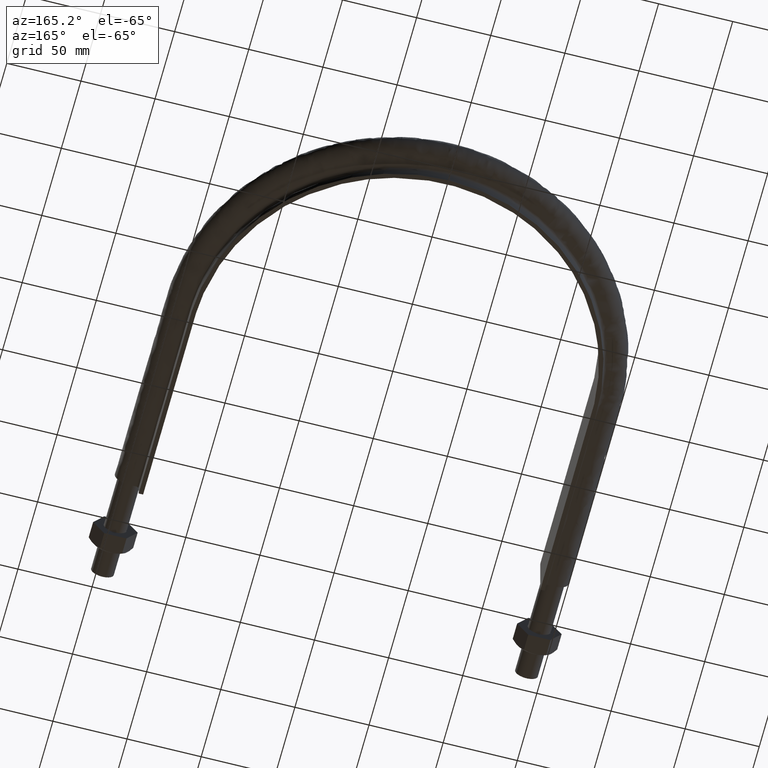
[diagram: clean part render]
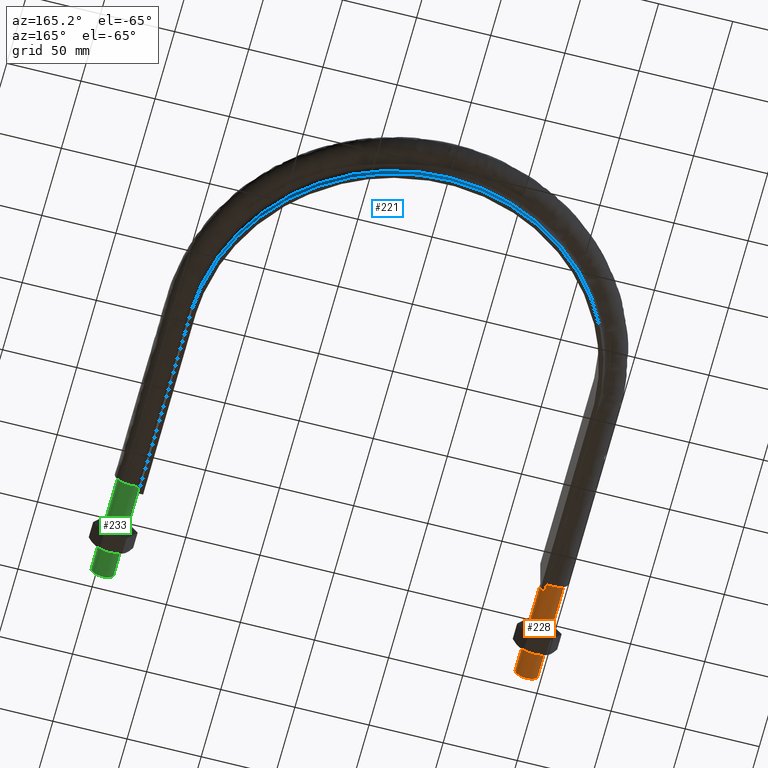
[diagram: same view with three faces highlighted in distinct colors, each labeled with its STEP entity id]
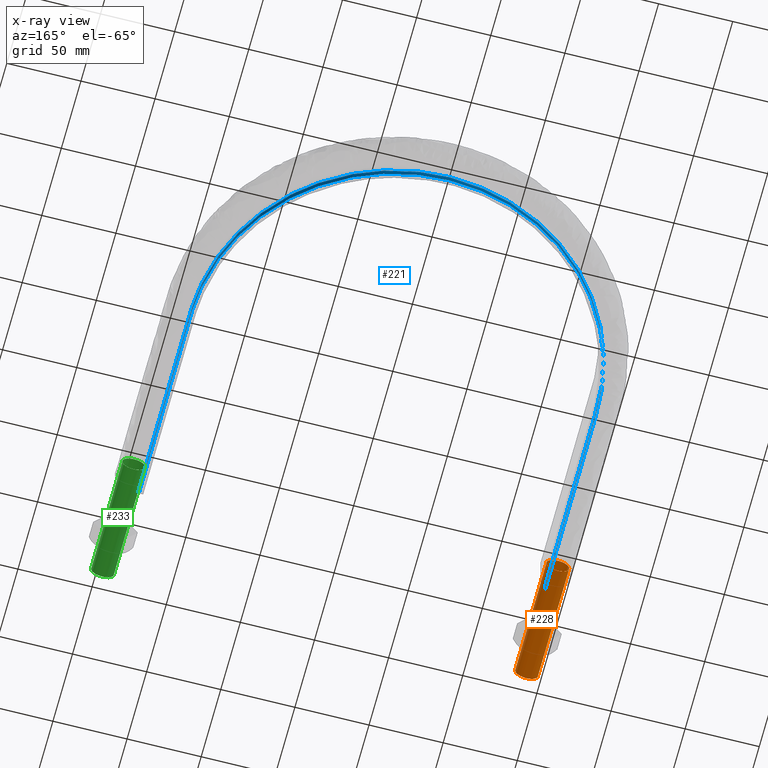
[diagram: x-ray of the same camera — body ghosted, the three highlighted faces saturated]
A machine part, auxiliary view with three faces highlighted in distinct colors.
The next image is the same camera in x-ray (body ghosted, the three faces saturated) — at least one of them is partly hidden behind the body in this view.
Their STEP definitions:

[orange] entity #228 — the highlighted cylindrical surface (bore or boss wall) has radius 7.75 mm, axis along (0, 1, -0).
#228 = ADVANCED_FACE( '', ( #281, #282 ), #283, .T. );
#281 = FACE_OUTER_BOUND( '', #1113, .T. );
#282 = FACE_OUTER_BOUND( '', #1114, .T. );
#283 = CYLINDRICAL_SURFACE( '', #1115, 7.75000000000001 );
#1113 = EDGE_LOOP( '', ( #1636 ) );
#1114 = EDGE_LOOP( '', ( #1637 ) );
#1115 = AXIS2_PLACEMENT_3D( '', #1638, #1639, #1640 );
#1636 = ORIENTED_EDGE( '', *, *, #1850, .T. );
#1637 = ORIENTED_EDGE( '', *, *, #1851, .F. );
#1638 = CARTESIAN_POINT( '', ( -143.000000000000, 80.0000000000001, -2.44921270764475E-014 ) );
#1639 = DIRECTION( '', ( 2.44921270764476E-016, 1.00000000000000, -3.06151588455594E-016 ) );
#1640 = DIRECTION( '', ( 1.00000000000000, -2.44921270764476E-016, -5.47382212626882E-048 ) );
#1850 = EDGE_CURVE( '', #1936, #1936, #1937, .T. );
#1851 = EDGE_CURVE( '', #1938, #1938, #1939, .T. );
#1936 = VERTEX_POINT( '', #2506 );
#1937 = CIRCLE( '', #2507, 7.75000000000001 );
#1938 = VERTEX_POINT( '', #2508 );
#1939 = CIRCLE( '', #2509, 7.75000000000001 );
#2506 = CARTESIAN_POINT( '', ( -135.250000000000, 80.0000000000001, -2.44921270764475E-014 ) );
#2507 = AXIS2_PLACEMENT_3D( '', #2784, #2785, #2786 );
#2508 = CARTESIAN_POINT( '', ( -135.250000000000, 7.11248822424931E-014, 0.000000000000000 ) );
#2509 = AXIS2_PLACEMENT_3D( '', #2787, #2788, #2789 );
#2784 = CARTESIAN_POINT( '', ( -143.000000000000, 80.0000000000001, -2.44921270764475E-014 ) );
#2785 = DIRECTION( '', ( -2.44921270764476E-016, -1.00000000000000, 3.06151588455594E-016 ) );
#2786 = DIRECTION( '', ( 1.00000000000000, -2.44921270764476E-016, -5.47382212626882E-048 ) );
#2787 = CARTESIAN_POINT( '', ( -143.000000000000, 7.30230220909178E-014, 4.24221214785834E-047 ) );
#2788 = DIRECTION( '', ( -2.44921270764476E-016, -1.00000000000000, 3.06151588455594E-016 ) );
#2789 = DIRECTION( '', ( 1.00000000000000, -2.44921270764476E-016, -5.47382212626882E-048 ) );

[blue] entity #221 — the highlighted face is a SurfaceOfExtrusion surface.
#221 = ADVANCED_FACE( '', ( #264 ), #265, .T. );
#264 = FACE_OUTER_BOUND( '', #365, .T. );
#265 = SURFACE_OF_LINEAR_EXTRUSION( '', #366, #367 );
#365 = EDGE_LOOP( '', ( #1483, #1484, #1485, #1486 ) );
#366 = B_SPLINE_CURVE_WITH_KNOTS( '', 3, ( #1487, #1488, #1489, #1490, #1491, #1492, #1493, #1494, #1495, #1496, #1497, #1498, #1499, #1500, #1501, #1502, #1503, #1504, #1505, #1506, #1507, #1508, #1509, #1510, #1511, #1512, #1513, #1514, #1515, #1516, #1517, #1518, #1519, #1520, #1521, #1522, #1523, #1524, #1525, #1526, #1527, #1528, #1529, #1530, #1531, #1532, #1533, #1534, #1535, #1536, #1537, #1538, #1539, #1540, #1541, #1542, #1543, #1544, #1545, #1546, #1547, #1548, #1549, #1550, #1551, #1552, #1553, #1554, #1555, #1556, #1557, #1558, #1559, #1560, #1561, #1562, #1563, #1564, #1565, #1566, #1567, #1568, #1569, #1570, #1571, #1572, #1573, #1574, #1575, #1576, #1577, #1578, #1579 ), .UNSPECIFIED., .F., .F., ( 4, 1, 1, 2, 2, 2, 2, 2, 2, 2, 2, 2, 2, 2, 2, 2, 2, 2, 2, 2, 2, 2, 2, 2, 2, 2, 2, 2, 2, 2, 2, 2, 2, 2, 2, 2, 2, 2, 2, 2, 2, 2, 2, 2, 2, 2, 1, 4 ), ( 0.000000000000000, 0.125000000000002, 0.187500000000003, 0.191406250000003, 0.195312500000003, 0.203125000000002, 0.218750000000003, 0.250000000000003, 0.257812500000003, 0.265625000000003, 0.281250000000002, 0.312500000000002, 0.328125000000002, 0.343750000000002, 0.375000000000001, 0.390625000000001, 0.398437500000001, 0.406250000000001, 0.437500000000001, 0.453125000000001, 0.460937500000000, 0.468750000000000, 0.500000000000000, 0.515625000000000, 0.523437500000000, 0.531250000000000, 0.562500000000000, 0.578124999999999, 0.585937499999999, 0.593749999999999, 0.624999999999999, 0.656249999999999, 0.664062499999999, 0.671874999999999, 0.687499999999998, 0.718749999999998, 0.722656249999998, 0.726562499999998, 0.734374999999998, 0.749999999999998, 0.781249999999997, 0.789062499999997, 0.796874999999997, 0.804687499999997, 0.808593749999997, 0.812499999999996, 0.874999999999998, 1.00000000000000 ), .UNSPECIFIED. );
#367 = VECTOR( '', #1580, 1000.00000000000 );
#1483 = ORIENTED_EDGE( '', *, *, #1837, .T. );
#1484 = ORIENTED_EDGE( '', *, *, #1838, .T. );
#1485 = ORIENTED_EDGE( '', *, *, #1839, .F. );
#1486 = ORIENTED_EDGE( '', *, *, #1840, .F. );
#1487 = CARTESIAN_POINT( '', ( -136.950000000000, 69.5000000000001, -15.0000000000000 ) );
#1488 = CARTESIAN_POINT( '', ( -136.950000000000, 98.1083518142186, -15.0000000000000 ) );
#1489 = CARTESIAN_POINT( '', ( -136.950000000000, 141.020879535546, -15.0000000000000 ) );
#1490 = CARTESIAN_POINT( '', ( -136.950000000000, 184.827418251068, -15.0000000000000 ) );
#1491 = CARTESIAN_POINT( '', ( -136.950000000000, 200.025605152372, -15.0000000000000 ) );
#1492 = CARTESIAN_POINT( '', ( -136.950000000000, 201.813627140760, -15.0000000000000 ) );
#1493 = CARTESIAN_POINT( '', ( -136.951346114390, 202.707775042567, -15.0000000000000 ) );
#1494 = CARTESIAN_POINT( '', ( -136.920609614582, 205.386681945512, -15.0000000000000 ) );
#1495 = CARTESIAN_POINT( '', ( -136.864816667886, 207.169029468828, -15.0000000000000 ) );
#1496 = CARTESIAN_POINT( '', ( -136.593146380454, 212.505464995944, -15.0000000000000 ) );
#1497 = CARTESIAN_POINT( '', ( -136.273189661635, 216.048967525582, -15.0000000000000 ) );
#1498 = CARTESIAN_POINT( '', ( -134.901802697672, 226.637621477265, -15.0000000000000 ) );
#1499 = CARTESIAN_POINT( '', ( -133.442512350631, 233.641291170172, -15.0000000000000 ) );
#1500 = CARTESIAN_POINT( '', ( -130.901383601594, 242.322953634697, -15.0000000000000 ) );
#1501 = CARTESIAN_POINT( '', ( -130.357015832177, 244.055610275365, -15.0000000000000 ) );
#1502 = CARTESIAN_POINT( '', ( -129.193847954833, 247.513353357775, -15.0000000000000 ) );
#1503 = CARTESIAN_POINT( '', ( -128.573476846170, 249.242131151953, -15.0000000000000 ) );
#1504 = CARTESIAN_POINT( '', ( -126.618174555290, 254.362723165805, -15.0000000000000 ) );
#1505 = CARTESIAN_POINT( '', ( -125.184490197968, 257.702984774707, -15.0000000000000 ) );
#1506 = CARTESIAN_POINT( '', ( -120.505328593638, 267.510336023068, -15.0000000000000 ) );
#1507 = CARTESIAN_POINT( '', ( -116.886061102882, 273.766429658881, -15.0000000000000 ) );
#1508 = CARTESIAN_POINT( '', ( -110.711856714430, 282.729863608688, -15.0000000000000 ) );
#1509 = CARTESIAN_POINT( '', ( -108.528201325971, 285.647880339849, -15.0000000000000 ) );
#1510 = CARTESIAN_POINT( '', ( -103.904407759561, 291.334716161009, -15.0000000000000 ) );
#1511 = CARTESIAN_POINT( '', ( -101.494535344133, 294.066402872892, -15.0000000000000 ) );
#1512 = CARTESIAN_POINT( '', ( -93.9768857717446, 301.932991567950, -15.0000000000000 ) );
#1513 = CARTESIAN_POINT( '', ( -88.5810092968209, 306.739345713163, -15.0000000000000 ) );
#1514 = CARTESIAN_POINT( '', ( -79.9242816112247, 313.306932196036, -15.0000000000000 ) );
#1515 = CARTESIAN_POINT( '', ( -76.9444034133837, 315.388585548725, -15.0000000000000 ) );
#1516 = CARTESIAN_POINT( '', ( -72.3295994596727, 318.345723108325, -15.0000000000000 ) );
#1517 = CARTESIAN_POINT( '', ( -70.7649027135216, 319.304967513353, -15.0000000000000 ) );
#1518 = CARTESIAN_POINT( '', ( -67.6140063459477, 321.151291429898, -15.0000000000000 ) );
#1519 = CARTESIAN_POINT( '', ( -66.0248395654166, 322.040393152112, -15.0000000000000 ) );
#1520 = CARTESIAN_POINT( '', ( -58.0112237793678, 326.317614365294, -15.0000000000000 ) );
#1521 = CARTESIAN_POINT( '', ( -51.3838695117621, 329.201965048637, -15.0000000000000 ) );
#1522 = CARTESIAN_POINT( '', ( -41.1199306990064, 332.726783518546, -15.0000000000000 ) );
#1523 = CARTESIAN_POINT( '', ( -37.6449536795551, 333.768486983704, -15.0000000000000 ) );
#1524 = CARTESIAN_POINT( '', ( -32.3508572250080, 335.128370680882, -15.0000000000000 ) );
#1525 = CARTESIAN_POINT( '', ( -30.5711219683573, 335.548134877370, -15.0000000000000 ) );
#1526 = CARTESIAN_POINT( '', ( -26.9898806015859, 336.317593884026, -15.0000000000000 ) );
#1527 = CARTESIAN_POINT( '', ( -25.1975634552110, 336.665375332185, -15.0000000000000 ) );
#1528 = CARTESIAN_POINT( '', ( -16.2276412077899, 338.222717729931, -15.0000000000000 ) );
#1529 = CARTESIAN_POINT( '', ( -9.02523440856736, 338.892110978601, -15.0000000000000 ) );
#1530 = CARTESIAN_POINT( '', ( 1.81786937464440, 339.036051739121, -15.0000000000000 ) );
#1531 = CARTESIAN_POINT( '', ( 5.43888442947024, 338.939261125259, -15.0000000000000 ) );
#1532 = CARTESIAN_POINT( '', ( 10.8804397715058, 338.575567070277, -15.0000000000000 ) );
#1533 = CARTESIAN_POINT( '', ( 12.6959650568691, 338.417887683017, -15.0000000000000 ) );
#1534 = CARTESIAN_POINT( '', ( 16.3304010621810, 338.028795956680, -15.0000000000000 ) );
#1535 = CARTESIAN_POINT( '', ( 18.1509778757328, 337.796964222104, -15.0000000000000 ) );
#1536 = CARTESIAN_POINT( '', ( 27.1816143256275, 336.463826032725, -15.0000000000000 ) );
#1537 = CARTESIAN_POINT( '', ( 34.2390508622090, 334.839668956545, -15.0000000000000 ) );
#1538 = CARTESIAN_POINT( '', ( 44.5810778790186, 331.588595998648, -15.0000000000000 ) );
#1539 = CARTESIAN_POINT( '', ( 47.9874716560260, 330.368228980460, -15.0000000000000 ) );
#1540 = CARTESIAN_POINT( '', ( 53.0340989443394, 328.327522487613, -15.0000000000000 ) );
#1541 = CARTESIAN_POINT( '', ( 54.7057757971050, 327.612133002601, -15.0000000000000 ) );
#1542 = CARTESIAN_POINT( '', ( 58.0278931759406, 326.110472498891, -15.0000000000000 ) );
#1543 = CARTESIAN_POINT( '', ( 59.6804492387648, 325.323156348271, -15.0000000000000 ) );
#1544 = CARTESIAN_POINT( '', ( 67.8662269615211, 321.218943105620, -15.0000000000000 ) );
#1545 = CARTESIAN_POINT( '', ( 74.0672509269300, 317.457093171529, -15.0000000000000 ) );
#1546 = CARTESIAN_POINT( '', ( 85.8066697855656, 309.021264559786, -15.0000000000000 ) );
#1547 = CARTESIAN_POINT( '', ( 91.3450708111379, 304.347294323490, -15.0000000000000 ) );
#1548 = CARTESIAN_POINT( '', ( 97.8308624293475, 297.902999344751, -15.0000000000000 ) );
#1549 = CARTESIAN_POINT( '', ( 99.1063522438762, 296.583042958306, -15.0000000000000 ) );
#1550 = CARTESIAN_POINT( '', ( 101.590244963731, 293.906741637720, -15.0000000000000 ) );
#1551 = CARTESIAN_POINT( '', ( 102.801672903783, 292.547491271698, -15.0000000000000 ) );
#1552 = CARTESIAN_POINT( '', ( 106.346254323220, 288.407722078790, -15.0000000000000 ) );
#1553 = CARTESIAN_POINT( '', ( 108.589893323643, 285.565315081670, -15.0000000000000 ) );
#1554 = CARTESIAN_POINT( '', ( 114.970214089517, 276.795700236809, -15.0000000000000 ) );
#1555 = CARTESIAN_POINT( '', ( 118.759288976830, 270.628165305693, -15.0000000000000 ) );
#1556 = CARTESIAN_POINT( '', ( 122.482049801510, 263.316381079695, -15.0000000000000 ) );
#1557 = CARTESIAN_POINT( '', ( 122.888127373353, 262.498732064797, -15.0000000000000 ) );
#1558 = CARTESIAN_POINT( '', ( 123.684984798984, 260.852857558546, -15.0000000000000 ) );
#1559 = CARTESIAN_POINT( '', ( 124.076188679038, 260.023697389435, -15.0000000000000 ) );
#1560 = CARTESIAN_POINT( '', ( 125.223076035006, 257.527782870249, -15.0000000000000 ) );
#1561 = CARTESIAN_POINT( '', ( 125.951536386374, 255.853956327217, -15.0000000000000 ) );
#1562 = CARTESIAN_POINT( '', ( 128.029666807743, 250.803138776699, -15.0000000000000 ) );
#1563 = CARTESIAN_POINT( '', ( 129.272445179675, 247.396908032732, -15.0000000000000 ) );
#1564 = CARTESIAN_POINT( '', ( 132.586786070952, 237.064969568913, -15.0000000000000 ) );
#1565 = CARTESIAN_POINT( '', ( 134.247821790206, 230.026964115281, -15.0000000000000 ) );
#1566 = CARTESIAN_POINT( '', ( 135.630952375180, 221.039845429982, -15.0000000000000 ) );
#1567 = CARTESIAN_POINT( '', ( 135.872641992840, 219.232864972872, -15.0000000000000 ) );
#1568 = CARTESIAN_POINT( '', ( 136.284803757172, 215.599422844282, -15.0000000000000 ) );
#1569 = CARTESIAN_POINT( '', ( 136.455153129533, 213.772516640443, -15.0000000000000 ) );
#1570 = CARTESIAN_POINT( '', ( 136.721567786733, 210.123756924611, -15.0000000000000 ) );
#1571 = CARTESIAN_POINT( '', ( 136.818027802696, 208.298840221395, -15.0000000000000 ) );
#1572 = CARTESIAN_POINT( '', ( 136.907499245267, 205.560658472589, -15.0000000000000 ) );
#1573 = CARTESIAN_POINT( '', ( 136.928116262671, 204.647796719939, -15.0000000000000 ) );
#1574 = CARTESIAN_POINT( '', ( 136.950875956315, 202.821803321072, -15.0000000000000 ) );
#1575 = CARTESIAN_POINT( '', ( 136.950000000000, 201.908627575340, -15.0000000000000 ) );
#1576 = CARTESIAN_POINT( '', ( 136.950000000000, 186.384857445817, -15.0000000000000 ) );
#1577 = CARTESIAN_POINT( '', ( 136.950000000000, 142.553035903636, -15.0000000000000 ) );
#1578 = CARTESIAN_POINT( '', ( 136.950000000000, 98.7212143614546, -15.0000000000000 ) );
#1579 = CARTESIAN_POINT( '', ( 136.950000000000, 69.5000000000000, -15.0000000000000 ) );
#1580 = DIRECTION( '', ( -7.49830360911069E-032, -3.06151588455594E-016, -1.00000000000000 ) );
#1837 = EDGE_CURVE( '', #1915, #1916, #1917, .T. );
#1838 = EDGE_CURVE( '', #1916, #1918, #1919, .T. );
#1839 = EDGE_CURVE( '', #1920, #1918, #1921, .T. );
#1840 = EDGE_CURVE( '', #1915, #1920, #1922, .T. );
#1915 = VERTEX_POINT( '', #2183 );
#1916 = VERTEX_POINT( '', #2184 );
#1917 = B_SPLINE_CURVE_WITH_KNOTS( '', 3, ( #2185, #2186, #2187, #2188, #2189, #2190, #2191, #2192, #2193, #2194, #2195, #2196, #2197, #2198, #2199, #2200, #2201, #2202, #2203, #2204, #2205, #2206, #2207, #2208, #2209, #2210, #2211, #2212, #2213, #2214, #2215, #2216, #2217, #2218, #2219, #2220, #2221, #2222, #2223, #2224, #2225, #2226, #2227, #2228, #2229, #2230, #2231, #2232, #2233, #2234, #2235, #2236, #2237, #2238, #2239, #2240, #2241, #2242, #2243, #2244, #2245, #2246, #2247, #2248, #2249, #2250, #2251, #2252, #2253, #2254, #2255, #2256, #2257, #2258, #2259, #2260, #2261, #2262, #2263, #2264, #2265, #2266, #2267, #2268, #2269, #2270, #2271, #2272, #2273, #2274, #2275, #2276, #2277 ), .UNSPECIFIED., .F., .F., ( 4, 1, 1, 2, 2, 2, 2, 2, 2, 2, 2, 2, 2, 2, 2, 2, 2, 2, 2, 2, 2, 2, 2, 2, 2, 2, 2, 2, 2, 2, 2, 2, 2, 2, 2, 2, 2, 2, 2, 2, 2, 2, 2, 2, 2, 2, 1, 4 ), ( 0.000000000000000, 0.125000000000002, 0.187500000000003, 0.191406250000003, 0.195312500000003, 0.203125000000002, 0.218750000000003, 0.250000000000003, 0.257812500000003, 0.265625000000003, 0.281250000000002, 0.312500000000002, 0.328125000000002, 0.343750000000002, 0.375000000000001, 0.390625000000001, 0.398437500000001, 0.406250000000001, 0.437500000000001, 0.453125000000001, 0.460937500000000, 0.468750000000000, 0.500000000000000, 0.515625000000000, 0.523437500000000, 0.531250000000000, 0.562500000000000, 0.578124999999999, 0.585937499999999, 0.593749999999999, 0.624999999999999, 0.656249999999999, 0.664062499999999, 0.671874999999999, 0.687499999999998, 0.718749999999998, 0.722656249999998, 0.726562499999998, 0.734374999999998, 0.749999999999998, 0.781249999999997, 0.789062499999997, 0.796874999999997, 0.804687499999997, 0.808593749999997, 0.812499999999996, 0.874999999999998, 1.00000000000000 ), .UNSPECIFIED. );
#1918 = VERTEX_POINT( '', #2278 );
#1919 = LINE( '', #2279, #2280 );
#1920 = VERTEX_POINT( '', #2281 );
#1921 = B_SPLINE_CURVE_WITH_KNOTS( '', 3, ( #2282, #2283, #2284, #2285, #2286, #2287, #2288, #2289, #2290, #2291, #2292, #2293, #2294, #2295, #2296, #2297, #2298, #2299, #2300, #2301, #2302, #2303, #2304, #2305, #2306, #2307, #2308, #2309, #2310, #2311, #2312, #2313, #2314, #2315, #2316, #2317, #2318, #2319, #2320, #2321, #2322, #2323, #2324, #2325, #2326, #2327, #2328, #2329, #2330, #2331, #2332, #2333, #2334, #2335, #2336, #2337, #2338, #2339, #2340, #2341, #2342, #2343, #2344, #2345, #2346, #2347, #2348, #2349, #2350, #2351, #2352, #2353, #2354, #2355, #2356, #2357, #2358, #2359, #2360, #2361, #2362, #2363, #2364, #2365, #2366, #2367, #2368, #2369, #2370, #2371, #2372, #2373, #2374, #2375, #2376, #2377, #2378, #2379, #2380, #2381, #2382, #2383, #2384, #2385, #2386, #2387, #2388 ), .UNSPECIFIED., .F., .F., ( 4, 1, 2, 2, 2, 2, 2, 2, 2, 2, 2, 2, 2, 2, 2, 2, 2, 2, 2, 2, 2, 2, 2, 2, 2, 2, 2, 2, 2, 2, 2, 2, 2, 2, 2, 1, 2, 2, 2, 2, 2, 2, 2, 2, 2, 2, 2, 2, 2, 2, 2, 2, 2, 1, 4 ), ( 0.000000000000000, 0.0874256844655775, 0.131138526698366, 0.133870579337916, 0.136602631977465, 0.142066737256563, 0.152994947814760, 0.174851368931154, 0.180315474210253, 0.183047526849802, 0.185779579489352, 0.196707790047549, 0.218564211163944, 0.229492421722142, 0.232224474361691, 0.234956527001241, 0.240420632280340, 0.262277053396735, 0.273205263954933, 0.275937316594483, 0.278669369234032, 0.284133474513131, 0.305989895629526, 0.316918106187724, 0.322382211466823, 0.325114264106372, 0.327846316745922, 0.349702737862317, 0.360630948420514, 0.366095053699613, 0.368827106339162, 0.371559158978712, 0.393415580095107, 0.415272001211502, 0.418004053851051, 0.420736106490601, 0.426200211769699, 0.437128422327897, 0.458984843444291, 0.461716896083841, 0.464448948723390, 0.469913054002489, 0.480841264560686, 0.502697685677080, 0.508161790956179, 0.513625896235278, 0.524554106793475, 0.546410527909870, 0.551874633188968, 0.557338738468067, 0.562802843747166, 0.565534896386715, 0.568266949026264, 0.611979791259055, 0.699405475724636 ), .UNSPECIFIED. );
#1922 = LINE( '', #2389, #2390 );
#2183 = CARTESIAN_POINT( '', ( -136.950000000000, 69.5000000000001, -15.0000000000000 ) );
#2184 = CARTESIAN_POINT( '', ( 136.950000000000, 69.5000000000001, -15.0000000000000 ) );
#2185 = CARTESIAN_POINT( '', ( -136.950000000000, 69.5000000000001, -15.0000000000000 ) );
#2186 = CARTESIAN_POINT( '', ( -136.950000000000, 98.1083518142186, -15.0000000000000 ) );
#2187 = CARTESIAN_POINT( '', ( -136.950000000000, 141.020879535546, -15.0000000000000 ) );
#2188 = CARTESIAN_POINT( '', ( -136.950000000000, 184.827418251068, -15.0000000000000 ) );
#2189 = CARTESIAN_POINT( '', ( -136.950000000000, 200.025605152372, -15.0000000000000 ) );
#2190 = CARTESIAN_POINT( '', ( -136.950000000000, 201.813627140760, -15.0000000000000 ) );
#2191 = CARTESIAN_POINT( '', ( -136.951346114390, 202.707775042567, -15.0000000000000 ) );
#2192 = CARTESIAN_POINT( '', ( -136.920609614582, 205.386681945512, -15.0000000000000 ) );
#2193 = CARTESIAN_POINT( '', ( -136.864816667886, 207.169029468828, -15.0000000000000 ) );
#2194 = CARTESIAN_POINT( '', ( -136.593146380454, 212.505464995944, -15.0000000000000 ) );
#2195 = CARTESIAN_POINT( '', ( -136.273189661635, 216.048967525582, -15.0000000000000 ) );
#2196 = CARTESIAN_POINT( '', ( -134.901802697672, 226.637621477265, -15.0000000000000 ) );
#2197 = CARTESIAN_POINT( '', ( -133.442512350631, 233.641291170172, -15.0000000000000 ) );
#2198 = CARTESIAN_POINT( '', ( -130.901383601594, 242.322953634697, -15.0000000000000 ) );
#2199 = CARTESIAN_POINT( '', ( -130.357015832177, 244.055610275365, -15.0000000000000 ) );
#2200 = CARTESIAN_POINT( '', ( -129.193847954833, 247.513353357775, -15.0000000000000 ) );
#2201 = CARTESIAN_POINT( '', ( -128.573476846170, 249.242131151953, -15.0000000000000 ) );
#2202 = CARTESIAN_POINT( '', ( -126.618174555290, 254.362723165805, -15.0000000000000 ) );
#2203 = CARTESIAN_POINT( '', ( -125.184490197968, 257.702984774707, -15.0000000000000 ) );
#2204 = CARTESIAN_POINT( '', ( -120.505328593638, 267.510336023068, -15.0000000000000 ) );
#2205 = CARTESIAN_POINT( '', ( -116.886061102882, 273.766429658881, -15.0000000000000 ) );
#2206 = CARTESIAN_POINT( '', ( -110.711856714430, 282.729863608688, -15.0000000000000 ) );
#2207 = CARTESIAN_POINT( '', ( -108.528201325971, 285.647880339849, -15.0000000000000 ) );
#2208 = CARTESIAN_POINT( '', ( -103.904407759561, 291.334716161009, -15.0000000000000 ) );
#2209 = CARTESIAN_POINT( '', ( -101.494535344133, 294.066402872892, -15.0000000000000 ) );
#2210 = CARTESIAN_POINT( '', ( -93.9768857717446, 301.932991567950, -15.0000000000000 ) );
#2211 = CARTESIAN_POINT( '', ( -88.5810092968209, 306.739345713163, -15.0000000000000 ) );
#2212 = CARTESIAN_POINT( '', ( -79.9242816112247, 313.306932196036, -15.0000000000000 ) );
#2213 = CARTESIAN_POINT( '', ( -76.9444034133837, 315.388585548725, -15.0000000000000 ) );
#2214 = CARTESIAN_POINT( '', ( -72.3295994596727, 318.345723108325, -15.0000000000000 ) );
#2215 = CARTESIAN_POINT( '', ( -70.7649027135216, 319.304967513353, -15.0000000000000 ) );
#2216 = CARTESIAN_POINT( '', ( -67.6140063459477, 321.151291429898, -15.0000000000000 ) );
#2217 = CARTESIAN_POINT( '', ( -66.0248395654166, 322.040393152112, -15.0000000000000 ) );
#2218 = CARTESIAN_POINT( '', ( -58.0112237793678, 326.317614365294, -15.0000000000000 ) );
#2219 = CARTESIAN_POINT( '', ( -51.3838695117621, 329.201965048637, -15.0000000000000 ) );
#2220 = CARTESIAN_POINT( '', ( -41.1199306990064, 332.726783518546, -15.0000000000000 ) );
#2221 = CARTESIAN_POINT( '', ( -37.6449536795551, 333.768486983704, -15.0000000000000 ) );
#2222 = CARTESIAN_POINT( '', ( -32.3508572250080, 335.128370680882, -15.0000000000000 ) );
#2223 = CARTESIAN_POINT( '', ( -30.5711219683573, 335.548134877370, -15.0000000000000 ) );
#2224 = CARTESIAN_POINT( '', ( -26.9898806015859, 336.317593884026, -15.0000000000000 ) );
#2225 = CARTESIAN_POINT( '', ( -25.1975634552110, 336.665375332185, -15.0000000000000 ) );
#2226 = CARTESIAN_POINT( '', ( -16.2276412077899, 338.222717729931, -15.0000000000000 ) );
#2227 = CARTESIAN_POINT( '', ( -9.02523440856736, 338.892110978601, -15.0000000000000 ) );
#2228 = CARTESIAN_POINT( '', ( 1.81786937464440, 339.036051739121, -15.0000000000000 ) );
#2229 = CARTESIAN_POINT( '', ( 5.43888442947024, 338.939261125259, -15.0000000000000 ) );
#2230 = CARTESIAN_POINT( '', ( 10.8804397715058, 338.575567070277, -15.0000000000000 ) );
#2231 = CARTESIAN_POINT( '', ( 12.6959650568691, 338.417887683017, -15.0000000000000 ) );
#2232 = CARTESIAN_POINT( '', ( 16.3304010621810, 338.028795956680, -15.0000000000000 ) );
#2233 = CARTESIAN_POINT( '', ( 18.1509778757328, 337.796964222104, -15.0000000000000 ) );
#2234 = CARTESIAN_POINT( '', ( 27.1816143256275, 336.463826032725, -15.0000000000000 ) );
#2235 = CARTESIAN_POINT( '', ( 34.2390508622090, 334.839668956545, -15.0000000000000 ) );
#2236 = CARTESIAN_POINT( '', ( 44.5810778790186, 331.588595998648, -15.0000000000000 ) );
#2237 = CARTESIAN_POINT( '', ( 47.9874716560260, 330.368228980460, -15.0000000000000 ) );
#2238 = CARTESIAN_POINT( '', ( 53.0340989443394, 328.327522487613, -15.0000000000000 ) );
#2239 = CARTESIAN_POINT( '', ( 54.7057757971050, 327.612133002601, -15.0000000000000 ) );
#2240 = CARTESIAN_POINT( '', ( 58.0278931759406, 326.110472498891, -15.0000000000000 ) );
#2241 = CARTESIAN_POINT( '', ( 59.6804492387648, 325.323156348271, -15.0000000000000 ) );
#2242 = CARTESIAN_POINT( '', ( 67.8662269615211, 321.218943105620, -15.0000000000000 ) );
#2243 = CARTESIAN_POINT( '', ( 74.0672509269300, 317.457093171529, -15.0000000000000 ) );
#2244 = CARTESIAN_POINT( '', ( 85.8066697855656, 309.021264559786, -15.0000000000000 ) );
#2245 = CARTESIAN_POINT( '', ( 91.3450708111379, 304.347294323490, -15.0000000000000 ) );
#2246 = CARTESIAN_POINT( '', ( 97.8308624293475, 297.902999344751, -15.0000000000000 ) );
#2247 = CARTESIAN_POINT( '', ( 99.1063522438762, 296.583042958306, -15.0000000000000 ) );
#2248 = CARTESIAN_POINT( '', ( 101.590244963731, 293.906741637720, -15.0000000000000 ) );
#2249 = CARTESIAN_POINT( '', ( 102.801672903783, 292.547491271698, -15.0000000000000 ) );
#2250 = CARTESIAN_POINT( '', ( 106.346254323220, 288.407722078790, -15.0000000000000 ) );
#2251 = CARTESIAN_POINT( '', ( 108.589893323643, 285.565315081670, -15.0000000000000 ) );
#2252 = CARTESIAN_POINT( '', ( 114.970214089517, 276.795700236809, -15.0000000000000 ) );
#2253 = CARTESIAN_POINT( '', ( 118.759288976830, 270.628165305693, -15.0000000000000 ) );
#2254 = CARTESIAN_POINT( '', ( 122.482049801510, 263.316381079695, -15.0000000000000 ) );
#2255 = CARTESIAN_POINT( '', ( 122.888127373353, 262.498732064797, -15.0000000000000 ) );
#2256 = CARTESIAN_POINT( '', ( 123.684984798984, 260.852857558546, -15.0000000000000 ) );
#2257 = CARTESIAN_POINT( '', ( 124.076188679038, 260.023697389435, -15.0000000000000 ) );
#2258 = CARTESIAN_POINT( '', ( 125.223076035006, 257.527782870249, -15.0000000000000 ) );
#2259 = CARTESIAN_POINT( '', ( 125.951536386374, 255.853956327217, -15.0000000000000 ) );
#2260 = CARTESIAN_POINT( '', ( 128.029666807743, 250.803138776699, -15.0000000000000 ) );
#2261 = CARTESIAN_POINT( '', ( 129.272445179675, 247.396908032732, -15.0000000000000 ) );
#2262 = CARTESIAN_POINT( '', ( 132.586786070952, 237.064969568913, -15.0000000000000 ) );
#2263 = CARTESIAN_POINT( '', ( 134.247821790206, 230.026964115281, -15.0000000000000 ) );
#2264 = CARTESIAN_POINT( '', ( 135.630952375180, 221.039845429982, -15.0000000000000 ) );
#2265 = CARTESIAN_POINT( '', ( 135.872641992840, 219.232864972872, -15.0000000000000 ) );
#2266 = CARTESIAN_POINT( '', ( 136.284803757172, 215.599422844282, -15.0000000000000 ) );
#2267 = CARTESIAN_POINT( '', ( 136.455153129533, 213.772516640443, -15.0000000000000 ) );
#2268 = CARTESIAN_POINT( '', ( 136.721567786733, 210.123756924611, -15.0000000000000 ) );
#2269 = CARTESIAN_POINT( '', ( 136.818027802696, 208.298840221395, -15.0000000000000 ) );
#2270 = CARTESIAN_POINT( '', ( 136.907499245267, 205.560658472589, -15.0000000000000 ) );
#2271 = CARTESIAN_POINT( '', ( 136.928116262671, 204.647796719939, -15.0000000000000 ) );
#2272 = CARTESIAN_POINT( '', ( 136.950875956315, 202.821803321072, -15.0000000000000 ) );
#2273 = CARTESIAN_POINT( '', ( 136.950000000000, 201.908627575340, -15.0000000000000 ) );
#2274 = CARTESIAN_POINT( '', ( 136.950000000000, 186.384857445817, -15.0000000000000 ) );
#2275 = CARTESIAN_POINT( '', ( 136.950000000000, 142.553035903636, -15.0000000000000 ) );
#2276 = CARTESIAN_POINT( '', ( 136.950000000000, 98.7212143614546, -15.0000000000000 ) );
#2277 = CARTESIAN_POINT( '', ( 136.950000000000, 69.5000000000000, -15.0000000000000 ) );
#2278 = CARTESIAN_POINT( '', ( 136.950000000000, 69.5000000000001, -20.0000000000000 ) );
#2279 = CARTESIAN_POINT( '', ( 136.950000000000, 69.5000000000000, -15.0000000000000 ) );
#2280 = VECTOR( '', #2778, 1000.00000000000 );
#2281 = CARTESIAN_POINT( '', ( -136.950000000000, 69.5000000000001, -20.0000000000000 ) );
#2282 = CARTESIAN_POINT( '', ( -136.950000000000, 69.5000000000001, -20.0000000000000 ) );
#2283 = CARTESIAN_POINT( '', ( -136.950000000000, 98.6419002480960, -20.0000000000000 ) );
#2284 = CARTESIAN_POINT( '', ( -136.950000000000, 142.354750620240, -20.0000000000000 ) );
#2285 = CARTESIAN_POINT( '', ( -136.950000000000, 186.067600992384, -20.0000000000000 ) );
#2286 = CARTESIAN_POINT( '', ( -136.950000000000, 201.549235499184, -20.0000000000000 ) );
#2287 = CARTESIAN_POINT( '', ( -136.952005766823, 202.459921105950, -20.0000000000000 ) );
#2288 = CARTESIAN_POINT( '', ( -136.934979206279, 204.281279481053, -20.0000000000000 ) );
#2289 = CARTESIAN_POINT( '', ( -136.916553871832, 205.191952619806, -20.0000000000000 ) );
#2290 = CARTESIAN_POINT( '', ( -136.834753701177, 207.923955849778, -20.0000000000000 ) );
#2291 = CARTESIAN_POINT( '', ( -136.743599783762, 209.741272047865, -20.0000000000000 ) );
#2292 = CARTESIAN_POINT( '', ( -136.363495553162, 215.166484778737, -20.0000000000000 ) );
#2293 = CARTESIAN_POINT( '', ( -135.967488703049, 218.753870458477, -20.0000000000000 ) );
#2294 = CARTESIAN_POINT( '', ( -134.367551969833, 229.431038801502, -20.0000000000000 ) );
#2295 = CARTESIAN_POINT( '', ( -132.750553866295, 236.435595074188, -20.0000000000000 ) );
#2296 = CARTESIAN_POINT( '', ( -130.033489035350, 245.047725779307, -20.0000000000000 ) );
#2297 = CARTESIAN_POINT( '', ( -129.454886141079, 246.762891350750, -20.0000000000000 ) );
#2298 = CARTESIAN_POINT( '', ( -128.533317502654, 249.324567410139, -20.0000000000000 ) );
#2299 = CARTESIAN_POINT( '', ( -128.217212893151, 250.176620027544, -20.0000000000000 ) );
#2300 = CARTESIAN_POINT( '', ( -127.566740219222, 251.876957051038, -20.0000000000000 ) );
#2301 = CARTESIAN_POINT( '', ( -127.232398800359, 252.725180838075, -20.0000000000000 ) );
#2302 = CARTESIAN_POINT( '', ( -125.522807242120, 256.937555990533, -20.0000000000000 ) );
#2303 = CARTESIAN_POINT( '', ( -124.027890382204, 260.231015655081, -20.0000000000000 ) );
#2304 = CARTESIAN_POINT( '', ( -119.177772488668, 269.891903517804, -20.0000000000000 ) );
#2305 = CARTESIAN_POINT( '', ( -115.456951462221, 276.039688790391, -20.0000000000000 ) );
#2306 = CARTESIAN_POINT( '', ( -109.152951019678, 284.827169774968, -20.0000000000000 ) );
#2307 = CARTESIAN_POINT( '', ( -106.930050833060, 287.683299996948, -20.0000000000000 ) );
#2308 = CARTESIAN_POINT( '', ( -103.994442146743, 291.159156375507, -20.0000000000000 ) );
#2309 = CARTESIAN_POINT( '', ( -103.399206220789, 291.849830869766, -20.0000000000000 ) );
#2310 = CARTESIAN_POINT( '', ( -102.198265091285, 293.215468669266, -20.0000000000000 ) );
#2311 = CARTESIAN_POINT( '', ( -101.591920700939, 293.891203542509, -20.0000000000000 ) );
#2312 = CARTESIAN_POINT( '', ( -99.7553846231987, 295.897299082120, -20.0000000000000 ) );
#2313 = CARTESIAN_POINT( '', ( -98.5077032633219, 297.206566629277, -20.0000000000000 ) );
#2314 = CARTESIAN_POINT( '', ( -92.1539858603092, 303.613835991360, -20.0000000000000 ) );
#2315 = CARTESIAN_POINT( '', ( -86.7024715106708, 308.295179626350, -20.0000000000000 ) );
#2316 = CARTESIAN_POINT( '', ( -77.9891669345174, 314.670721620154, -20.0000000000000 ) );
#2317 = CARTESIAN_POINT( '', ( -74.9946413234176, 316.687249879641, -20.0000000000000 ) );
#2318 = CARTESIAN_POINT( '', ( -71.1363767592827, 319.069086719325, -20.0000000000000 ) );
#2319 = CARTESIAN_POINT( '', ( -70.3589796436467, 319.538526390088, -20.0000000000000 ) );
#2320 = CARTESIAN_POINT( '', ( -68.7925101038945, 320.463324926278, -20.0000000000000 ) );
#2321 = CARTESIAN_POINT( '', ( -68.0028416365785, 320.918994503183, -20.0000000000000 ) );
#2322 = CARTESIAN_POINT( '', ( -65.6265150793025, 322.258978990766, -20.0000000000000 ) );
#2323 = CARTESIAN_POINT( '', ( -64.0295971988866, 323.118030590863, -20.0000000000000 ) );
#2324 = CARTESIAN_POINT( '', ( -55.9824089667818, 327.244365806933, -20.0000000000000 ) );
#2325 = CARTESIAN_POINT( '', ( -49.3439512001679, 330.003826159943, -20.0000000000000 ) );
#2326 = CARTESIAN_POINT( '', ( -39.0910082445133, 333.346268295585, -20.0000000000000 ) );
#2327 = CARTESIAN_POINT( '', ( -35.6241551653441, 334.327634953121, -20.0000000000000 ) );
#2328 = CARTESIAN_POINT( '', ( -30.3492784457383, 335.598384851545, -20.0000000000000 ) );
#2329 = CARTESIAN_POINT( '', ( -28.5785337099534, 335.988365122301, -20.0000000000000 ) );
#2330 = CARTESIAN_POINT( '', ( -25.9034309357760, 336.522102744634, -20.0000000000000 ) );
#2331 = CARTESIAN_POINT( '', ( -25.0077107436208, 336.691611247165, -20.0000000000000 ) );
#2332 = CARTESIAN_POINT( '', ( -23.2172138820250, 337.012112274074, -20.0000000000000 ) );
#2333 = CARTESIAN_POINT( '', ( -22.3218036874375, 337.163270419112, -20.0000000000000 ) );
#2334 = CARTESIAN_POINT( '', ( -14.2616746941840, 338.442909678166, -20.0000000000000 ) );
#2335 = CARTESIAN_POINT( '', ( -7.08688203433114, 339.005162357811, -20.0000000000000 ) );
#2336 = CARTESIAN_POINT( '', ( 3.69045053043305, 338.997356057590, -20.0000000000000 ) );
#2337 = CARTESIAN_POINT( '', ( 7.28543714267412, 338.851850186395, -20.0000000000000 ) );
#2338 = CARTESIAN_POINT( '', ( 12.6817359396586, 338.418941046076, -20.0000000000000 ) );
#2339 = CARTESIAN_POINT( '', ( 14.4811397915200, 338.238800753870, -20.0000000000000 ) );
#2340 = CARTESIAN_POINT( '', ( 17.1812121944062, 337.914258555032, -20.0000000000000 ) );
#2341 = CARTESIAN_POINT( '', ( 18.0813968219039, 337.797056870439, -20.0000000000000 ) );
#2342 = CARTESIAN_POINT( '', ( 19.8820902819303, 337.544430686412, -20.0000000000000 ) );
#2343 = CARTESIAN_POINT( '', ( 20.7835449490252, 337.408813108144, -20.0000000000000 ) );
#2344 = CARTESIAN_POINT( '', ( 28.8670965883663, 336.111328549368, -20.0000000000000 ) );
#2345 = CARTESIAN_POINT( '', ( 35.8703135520825, 334.406800400236, -20.0000000000000 ) );
#2346 = CARTESIAN_POINT( '', ( 49.5251538415398, 329.933849723650, -20.0000000000000 ) );
#2347 = CARTESIAN_POINT( '', ( 56.1748232267696, 327.159514727648, -20.0000000000000 ) );
#2348 = CARTESIAN_POINT( '', ( 63.4492399727951, 323.413652350487, -20.0000000000000 ) );
#2349 = CARTESIAN_POINT( '', ( 64.2555412528373, 322.988297906819, -20.0000000000000 ) );
#2350 = CARTESIAN_POINT( '', ( 65.8566175141503, 322.123190874324, -20.0000000000000 ) );
#2351 = CARTESIAN_POINT( '', ( 68.2414579242865, 320.803750954368, -20.0000000000000 ) );
#2352 = CARTESIAN_POINT( '', ( 70.5763589403622, 319.419469626318, -20.0000000000000 ) );
#2353 = CARTESIAN_POINT( '', ( 75.1805857318804, 316.565763947985, -20.0000000000000 ) );
#2354 = CARTESIAN_POINT( '', ( 78.1627035340690, 314.549856366460, -20.0000000000000 ) );
#2355 = CARTESIAN_POINT( '', ( 86.8543207620284, 308.171383663376, -20.0000000000000 ) );
#2356 = CARTESIAN_POINT( '', ( 92.3077229888269, 303.476301431774, -20.0000000000000 ) );
#2357 = CARTESIAN_POINT( '', ( 98.0418417248303, 297.673728261737, -20.0000000000000 ) );
#2358 = CARTESIAN_POINT( '', ( 98.6733697505186, 297.021731690674, -20.0000000000000 ) );
#2359 = CARTESIAN_POINT( '', ( 99.9251833237657, 295.703141292691, -20.0000000000000 ) );
#2360 = CARTESIAN_POINT( '', ( 100.546136743126, 295.035752086248, -20.0000000000000 ) );
#2361 = CARTESIAN_POINT( '', ( 102.386046552847, 293.018007311479, -20.0000000000000 ) );
#2362 = CARTESIAN_POINT( '', ( 103.581668710405, 291.652670943049, -20.0000000000000 ) );
#2363 = CARTESIAN_POINT( '', ( 107.077810366186, 287.497593093930, -20.0000000000000 ) );
#2364 = CARTESIAN_POINT( '', ( 109.287409665396, 284.648655660820, -20.0000000000000 ) );
#2365 = CARTESIAN_POINT( '', ( 115.563663674945, 275.872310524439, -20.0000000000000 ) );
#2366 = CARTESIAN_POINT( '', ( 119.278439319520, 269.715802833915, -20.0000000000000 ) );
#2367 = CARTESIAN_POINT( '', ( 123.322162063993, 261.629687512530, -20.0000000000000 ) );
#2368 = CARTESIAN_POINT( '', ( 124.100657851924, 259.992770208313, -20.0000000000000 ) );
#2369 = CARTESIAN_POINT( '', ( 125.595826737246, 256.678684334621, -20.0000000000000 ) );
#2370 = CARTESIAN_POINT( '', ( 126.312684101751, 255.000403133022, -20.0000000000000 ) );
#2371 = CARTESIAN_POINT( '', ( 128.350441665642, 249.950404789014, -20.0000000000000 ) );
#2372 = CARTESIAN_POINT( '', ( 129.565681668813, 246.548771227845, -20.0000000000000 ) );
#2373 = CARTESIAN_POINT( '', ( 132.799201309550, 236.243261059056, -20.0000000000000 ) );
#2374 = CARTESIAN_POINT( '', ( 134.406489655846, 229.239070076672, -20.0000000000000 ) );
#2375 = CARTESIAN_POINT( '', ( 135.730368078417, 220.316580552531, -20.0000000000000 ) );
#2376 = CARTESIAN_POINT( '', ( 135.960596827437, 218.523650463596, -20.0000000000000 ) );
#2377 = CARTESIAN_POINT( '', ( 136.350715609650, 214.920622076936, -20.0000000000000 ) );
#2378 = CARTESIAN_POINT( '', ( 136.510773884773, 213.109390090225, -20.0000000000000 ) );
#2379 = CARTESIAN_POINT( '', ( 136.758613068842, 209.474281669840, -20.0000000000000 ) );
#2380 = CARTESIAN_POINT( '', ( 136.846031799769, 207.656639207727, -20.0000000000000 ) );
#2381 = CARTESIAN_POINT( '', ( 136.922369077726, 204.930043041108, -20.0000000000000 ) );
#2382 = CARTESIAN_POINT( '', ( 136.939052762000, 204.021156467256, -20.0000000000000 ) );
#2383 = CARTESIAN_POINT( '', ( 136.951967908155, 202.203333870093, -20.0000000000000 ) );
#2384 = CARTESIAN_POINT( '', ( 136.950000000000, 201.294402200351, -20.0000000000000 ) );
#2385 = CARTESIAN_POINT( '', ( 136.950000000000, 185.842644700999, -20.0000000000000 ) );
#2386 = CARTESIAN_POINT( '', ( 136.950000000000, 142.214152938125, -20.0000000000000 ) );
#2387 = CARTESIAN_POINT( '', ( 136.950000000000, 98.5856611752498, -20.0000000000000 ) );
#2388 = CARTESIAN_POINT( '', ( 136.950000000000, 69.4999999999999, -20.0000000000000 ) );
#2389 = CARTESIAN_POINT( '', ( -136.950000000000, 69.5000000000001, -15.0000000000000 ) );
#2390 = VECTOR( '', #2779, 1000.00000000000 );
#2778 = DIRECTION( '', ( -7.49830360911069E-032, -3.06151588455594E-016, -1.00000000000000 ) );
#2779 = DIRECTION( '', ( -7.49830360911069E-032, -3.06151588455594E-016, -1.00000000000000 ) );

[green] entity #233 — the highlighted cylindrical surface (bore or boss wall) has radius 7.75 mm, axis along (0, 1, -0).
#233 = ADVANCED_FACE( '', ( #294, #295 ), #296, .T. );
#294 = FACE_OUTER_BOUND( '', #1312, .T. );
#295 = FACE_OUTER_BOUND( '', #1313, .T. );
#296 = CYLINDRICAL_SURFACE( '', #1314, 7.75000000000001 );
#1312 = EDGE_LOOP( '', ( #1656 ) );
#1313 = EDGE_LOOP( '', ( #1657 ) );
#1314 = AXIS2_PLACEMENT_3D( '', #1658, #1659, #1660 );
#1656 = ORIENTED_EDGE( '', *, *, #1855, .T. );
#1657 = ORIENTED_EDGE( '', *, *, #1854, .F. );
#1658 = CARTESIAN_POINT( '', ( 143.000000000000, 80.0000000000000, -2.44921270764475E-014 ) );
#1659 = DIRECTION( '', ( 2.44921270764476E-016, 1.00000000000000, -3.06151588455594E-016 ) );
#1660 = DIRECTION( '', ( 1.00000000000000, -2.44921270764476E-016, -5.47382212626882E-048 ) );
#1854 = EDGE_CURVE( '', #1944, #1944, #1945, .T. );
#1855 = EDGE_CURVE( '', #1946, #1946, #1947, .T. );
#1944 = VERTEX_POINT( '', #2534 );
#1945 = CIRCLE( '', #2535, 7.75000000000001 );
#1946 = VERTEX_POINT( '', #2536 );
#1947 = CIRCLE( '', #2537, 7.75000000000001 );
#2534 = CARTESIAN_POINT( '', ( 150.750000000000, -1.94100107080847E-014, 0.000000000000000 ) );
#2535 = AXIS2_PLACEMENT_3D( '', #2790, #2791, #2792 );
#2536 = CARTESIAN_POINT( '', ( 150.750000000000, 80.0000000000000, -2.44921270764475E-014 ) );
#2537 = AXIS2_PLACEMENT_3D( '', #2793, #2794, #2795 );
#2790 = CARTESIAN_POINT( '', ( 143.000000000000, -1.75118708596600E-014, -6.41805644305019E-046 ) );
#2791 = DIRECTION( '', ( -2.44921270764476E-016, -1.00000000000000, 3.06151588455594E-016 ) );
#2792 = DIRECTION( '', ( 1.00000000000000, -2.44921270764476E-016, 8.28136315232281E-047 ) );
#2793 = CARTESIAN_POINT( '', ( 143.000000000000, 80.0000000000000, -2.44921270764475E-014 ) );
#2794 = DIRECTION( '', ( -2.44921270764476E-016, -1.00000000000000, 3.06151588455594E-016 ) );
#2795 = DIRECTION( '', ( 1.00000000000000, -2.44921270764476E-016, 8.28136315232281E-047 ) );